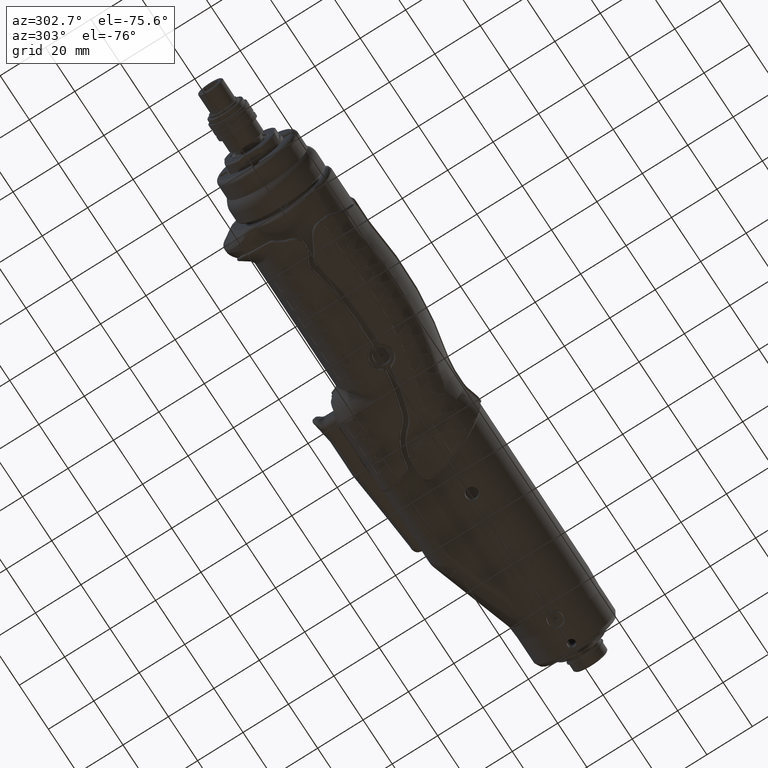
[diagram: clean part render]
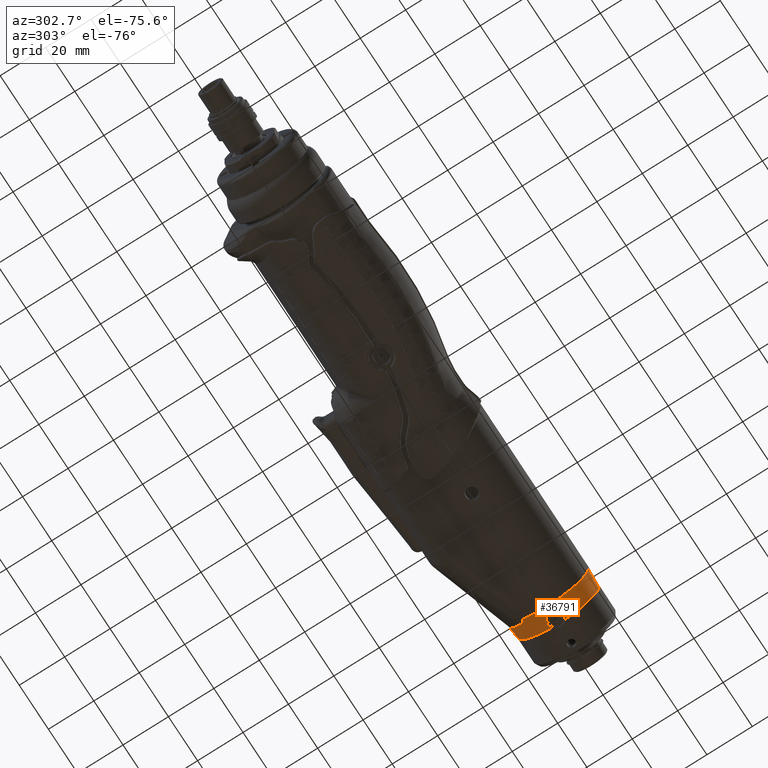
[diagram: same view with one face highlighted and labeled with its STEP entity id]
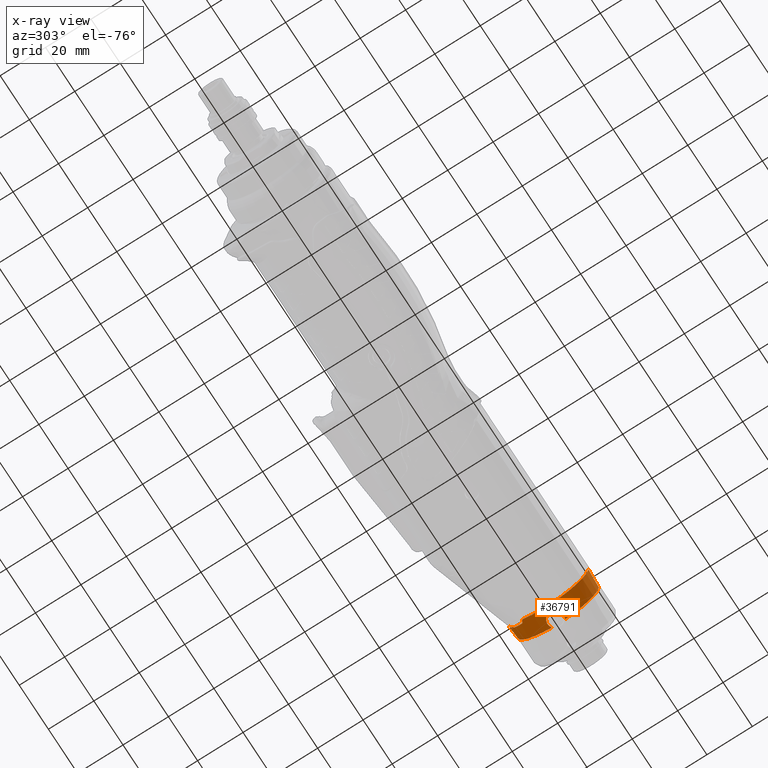
[diagram: x-ray of the same camera — body ghosted, the highlighted face saturated]
A machine part, auxiliary view. The second image highlights one B-rep face of the part: STEP entity #36791.
The next image is the same camera in x-ray: the body ghosted, the highlighted face saturated — about 0% of this face is hidden behind the body in this view.
In plain terms, the highlighted conical surface has half-angle 3.576 deg.
Its self-contained STEP definition (entity closure, byte-faithful):
#254=CONICAL_SURFACE('',#39764,18.25,0.0624188099959568);
#359=(
BOUNDED_CURVE()
B_SPLINE_CURVE(2,(#58639,#58640,#58641),.UNSPECIFIED.,.F.,.F.)
B_SPLINE_CURVE_WITH_KNOTS((3,3),(0.00104003275923503,0.00156713286452728),
 .UNSPECIFIED.)
CURVE()
GEOMETRIC_REPRESENTATION_ITEM()
RATIONAL_B_SPLINE_CURVE((1.00000001995545,1.00000001503454,1.))
REPRESENTATION_ITEM('')
);
#360=(
BOUNDED_CURVE()
B_SPLINE_CURVE(2,(#62619,#62620,#62621),.UNSPECIFIED.,.F.,.F.)
B_SPLINE_CURVE_WITH_KNOTS((3,3),(0.,0.000527100104807174),.UNSPECIFIED.)
CURVE()
GEOMETRIC_REPRESENTATION_ITEM()
RATIONAL_B_SPLINE_CURVE((1.,1.00000001582573,1.00000002100559))
REPRESENTATION_ITEM('')
);
#1807=LINE('',#58634,#3721);
#1893=LINE('',#62622,#3807);
#3721=VECTOR('',#44855,10.);
#3807=VECTOR('',#45427,10.);
#7047=FACE_OUTER_BOUND('',#9395,.T.);
#9395=EDGE_LOOP('',(#27534,#27535,#27536,#27537,#27538,#27539,#27540,#27541,
#27542,#27543,#27544,#27545));
#11535=CIRCLE('',#39547,18.5);
#11638=CIRCLE('',#39765,18.);
#11639=CIRCLE('',#39766,18.5);
#11640=CIRCLE('',#39767,18.);
#12570=B_SPLINE_CURVE_WITH_KNOTS('',3,(#62450,#62451,#62452,#62453,#62454,
#62455,#62456,#62457,#62458,#62459,#62460,#62461,#62462,#62463,#62464,#62465,
#62466,#62467,#62468,#62469,#62470,#62471,#62472,#62473,#62474,#62475,#62476,
#62477,#62478,#62479,#62480,#62481,#62482,#62483,#62484,#62485,#62486,#62487,
#62488,#62489,#62490,#62491,#62492,#62493,#62494,#62495,#62496,#62497,#62498,
#62499,#62500,#62501,#62502,#62503,#62504,#62505,#62506,#62507,#62508,#62509,
#62510,#62511,#62512,#62513,#62514,#62515,#62516,#62517,#62518,#62519,#62520,
#62521,#62522,#62523,#62524,#62525,#62526,#62527,#62528,#62529,#62530,#62531,
#62532,#62533,#62534,#62535,#62536,#62537,#62538,#62539,#62540,#62541,#62542,
#62543,#62544,#62545,#62546,#62547,#62548,#62549,#62550,#62551,#62552,#62553,
#62554,#62555,#62556,#62557,#62558,#62559,#62560,#62561,#62562,#62563,#62564,
#62565,#62566,#62567,#62568,#62569,#62570,#62571,#62572,#62573,#62574,#62575,
#62576,#62577,#62578,#62579,#62580,#62581,#62582),.UNSPECIFIED.,.F.,.F.,
(4,3,3,3,3,3,3,3,3,3,3,3,3,3,3,3,3,3,3,3,3,3,3,3,3,3,3,3,3,3,3,3,3,3,3,
3,3,3,3,3,3,3,3,3,4),(-2.93714259881077,-2.90834447914404,-2.85116685314039,
-2.82929825116945,-2.80883245135215,-2.7972943206201,-2.78511389557666,
-2.72676447893507,-2.72064538995328,-2.66274062422019,-2.60784954568541,
-2.55235974516229,-2.5355286399308,-2.50336042135629,-2.45486092870458,
-2.41849206889797,-2.39472766404724,-2.32172749538986,-2.31494317466276,
-2.28610877600507,-2.24043959387444,-2.20354592014743,-2.17749058824733,
-2.17747802537893,-2.1542651754434,-2.11926637875517,-2.0722598161924,-2.06884798659854,
-2.04205000957987,-1.9701898313079,-1.96023912150158,-1.91709340732681,
-1.86962412091606,-1.85161753117794,-1.80510090314765,-1.78038515552278,
-1.70426976628469,-1.64133579745047,-1.63434482723175,-1.58690743269953,
-1.53873177343309,-1.52567598883331,-1.51254143930877,-1.46268569694074,
-1.41784220686106),.UNSPECIFIED.);
#12575=B_SPLINE_CURVE_WITH_KNOTS('',3,(#62626,#62627,#62628,#62629,#62630,
#62631,#62632,#62633,#62634,#62635),.UNSPECIFIED.,.F.,.F.,(4,2,2,2,4),(-0.000466845749207443,
0.,0.0249297418680463,0.0471638812398344,0.0933230027516463),
 .UNSPECIFIED.);
#12576=B_SPLINE_CURVE_WITH_KNOTS('',3,(#62637,#62638,#62639,#62640,#62641,
#62642,#62643,#62644,#62645,#62646),.UNSPECIFIED.,.F.,.F.,(4,2,2,2,4),(0.897314105273959,
0.897882514580168,1.01265430119833,1.08593987366293,1.16024933147187),
 .UNSPECIFIED.);
#12577=B_SPLINE_CURVE_WITH_KNOTS('',3,(#62647,#62648,#62649,#62650,#62651,
#62652,#62653,#62654,#62655,#62656,#62657,#62658),.UNSPECIFIED.,.F.,.F.,
(4,2,2,2,2,4),(3.9053561456094,4.06856163044681,4.4338113435107,4.7990610565746,
5.16431076963849,5.20765508833823),.UNSPECIFIED.);
#15396=VERTEX_POINT('',#58631);
#15397=VERTEX_POINT('',#58633);
#15398=VERTEX_POINT('',#58637);
#15473=VERTEX_POINT('',#59232);
#15474=VERTEX_POINT('',#59239);
#15618=VERTEX_POINT('',#62448);
#15619=VERTEX_POINT('',#62449);
#15621=VERTEX_POINT('',#62616);
#15622=VERTEX_POINT('',#62618);
#15623=VERTEX_POINT('',#62623);
#15624=VERTEX_POINT('',#62625);
#15625=VERTEX_POINT('',#62636);
#19594=EDGE_CURVE('',#15397,#15396,#1807,.T.);
#19597=EDGE_CURVE('',#15396,#15398,#359,.T.);
#19691=EDGE_CURVE('',#15473,#15474,#11535,.T.);
#19985=EDGE_CURVE('',#15618,#15619,#12570,.T.);
#19990=EDGE_CURVE('',#15621,#15618,#11638,.T.);
#19991=EDGE_CURVE('',#15621,#15622,#360,.T.);
#19992=EDGE_CURVE('',#15622,#15474,#1893,.T.);
#19993=EDGE_CURVE('',#15623,#15473,#11639,.T.);
#19994=EDGE_CURVE('',#15623,#15624,#12575,.T.);
#19995=EDGE_CURVE('',#15625,#15624,#12576,.F.);
#19996=EDGE_CURVE('',#15397,#15625,#12577,.T.);
#19997=EDGE_CURVE('',#15619,#15398,#11640,.T.);
#27534=ORIENTED_EDGE('',*,*,#19985,.F.);
#27535=ORIENTED_EDGE('',*,*,#19990,.F.);
#27536=ORIENTED_EDGE('',*,*,#19991,.T.);
#27537=ORIENTED_EDGE('',*,*,#19992,.T.);
#27538=ORIENTED_EDGE('',*,*,#19691,.F.);
#27539=ORIENTED_EDGE('',*,*,#19993,.F.);
#27540=ORIENTED_EDGE('',*,*,#19994,.T.);
#27541=ORIENTED_EDGE('',*,*,#19995,.F.);
#27542=ORIENTED_EDGE('',*,*,#19996,.F.);
#27543=ORIENTED_EDGE('',*,*,#19594,.T.);
#27544=ORIENTED_EDGE('',*,*,#19597,.T.);
#27545=ORIENTED_EDGE('',*,*,#19997,.F.);
#36791=ADVANCED_FACE('',(#7047),#254,.T.);
#39547=AXIS2_PLACEMENT_3D('',#59240,#44936,#44937);
#39764=AXIS2_PLACEMENT_3D('',#62615,#45423,#45424);
#39765=AXIS2_PLACEMENT_3D('',#62617,#45425,#45426);
#39766=AXIS2_PLACEMENT_3D('',#62624,#45428,#45429);
#39767=AXIS2_PLACEMENT_3D('',#62659,#45430,#45431);
#44855=DIRECTION('',(0.998052578482889,-0.0619880258423978,0.00696672346370529));
#44936=DIRECTION('center_axis',(-1.,0.,0.));
#44937=DIRECTION('ref_axis',(0.,-1.,0.));
#45423=DIRECTION('center_axis',(-1.,0.,0.));
#45424=DIRECTION('ref_axis',(0.,-1.,0.));
#45425=DIRECTION('center_axis',(1.,0.,0.));
#45426=DIRECTION('ref_axis',(0.,0.,-1.));
#45427=DIRECTION('',(-0.998052578482889,-0.0619880258423975,-0.00696672346370832));
#45428=DIRECTION('center_axis',(-1.,0.,0.));
#45429=DIRECTION('ref_axis',(0.,-1.,0.));
#45430=DIRECTION('center_axis',(1.,0.,0.));
#45431=DIRECTION('ref_axis',(0.,0.,-1.));
#58631=CARTESIAN_POINT('',(189.296491037772,17.8876036605099,-2.01035581368608));
#58633=CARTESIAN_POINT('',(183.919032194364,18.2215921345859,-2.04789218171267));
#58634=CARTESIAN_POINT('',(185.3,18.1358216352633,-2.03825258834982));
#58637=CARTESIAN_POINT('',(189.3,17.8878225448907,-2.00644077971384));
#58639=CARTESIAN_POINT('Ctrl Pts',(189.296491037772,17.8876036605099,-2.01035581368608));
#58640=CARTESIAN_POINT('Ctrl Pts',(189.298248935628,17.8877131033675,-2.00839828476755));
#58641=CARTESIAN_POINT('Ctrl Pts',(189.3,17.8878225448907,-2.00644077971387));
#59232=CARTESIAN_POINT('',(181.299999999252,9.95077601828565,-15.5958987119663));
#59239=CARTESIAN_POINT('',(181.3,-18.3842575480751,-2.06617385668418));
#59240=CARTESIAN_POINT('Origin',(181.3,0.,0.));
#62448=CARTESIAN_POINT('',(189.3,-2.83682780919607,-17.7750501541057));
#62449=CARTESIAN_POINT('',(189.299999995053,2.83682781623016,-17.7750501536093));
#62450=CARTESIAN_POINT('Ctrl Pts',(189.299999939743,-2.83682772773115,-17.7750502149843));
#62451=CARTESIAN_POINT('Ctrl Pts',(189.221535403186,-2.89260464088107,-17.7711156397036));
#62452=CARTESIAN_POINT('Ctrl Pts',(189.140746059252,-2.94505816471117,-17.7676172910778));
#62453=CARTESIAN_POINT('Ctrl Pts',(189.057937901734,-2.9940458070164,-17.7646321096991));
#62454=CARTESIAN_POINT('Ctrl Pts',(188.893525297182,-3.09130900068824,-17.7587051399387));
#62455=CARTESIAN_POINT('Ctrl Pts',(188.721145749806,-3.17491191249561,-17.7548012523494));
#62456=CARTESIAN_POINT('Ctrl Pts',(188.543165184488,-3.24380801501641,-17.7535153672733));
#62457=CARTESIAN_POINT('Ctrl Pts',(188.475093345667,-3.27015855715469,-17.7530235576115));
#62458=CARTESIAN_POINT('Ctrl Pts',(188.406202391925,-3.29435825230119,-17.7529146300155));
#62459=CARTESIAN_POINT('Ctrl Pts',(188.336625253032,-3.3163504654814,-17.7532215005654));
#62460=CARTESIAN_POINT('Ctrl Pts',(188.271511269141,-3.33693194723702,-17.7535086863332));
#62461=CARTESIAN_POINT('Ctrl Pts',(188.20579632264,-3.35558008104492,-17.7541600335663));
#62462=CARTESIAN_POINT('Ctrl Pts',(188.139610655165,-3.37227284570755,-17.7551860129883));
#62463=CARTESIAN_POINT('Ctrl Pts',(188.102296751446,-3.38168382903956,-17.7557644357621));
#62464=CARTESIAN_POINT('Ctrl Pts',(188.064833231803,-3.39047332624578,-17.7564619298131));
#62465=CARTESIAN_POINT('Ctrl Pts',(188.027243422109,-3.39863751282223,-17.7572803459936));
#62466=CARTESIAN_POINT('Ctrl Pts',(187.987561096608,-3.40725617601339,-17.7581443210319));
#62467=CARTESIAN_POINT('Ctrl Pts',(187.947729203211,-3.41517992182432,-17.7591432412644));
#62468=CARTESIAN_POINT('Ctrl Pts',(187.907772216112,-3.4224038275139,-17.7602795418716));
#62469=CARTESIAN_POINT('Ctrl Pts',(187.716361253061,-3.4570094083009,-17.7657229050812));
#62470=CARTESIAN_POINT('Ctrl Pts',(187.522098313483,-3.47554668042974,-17.7743191824371));
#62471=CARTESIAN_POINT('Ctrl Pts',(187.327983170594,-3.4774388044138,-17.7863244400179));
#62472=CARTESIAN_POINT('Ctrl Pts',(187.30762636327,-3.47763723099095,-17.7875834284297));
#62473=CARTESIAN_POINT('Ctrl Pts',(187.287271193964,-3.47765264445912,-17.7888798991635));
#62474=CARTESIAN_POINT('Ctrl Pts',(187.266921129252,-3.47748441129881,-17.7902141413973));
#62475=CARTESIAN_POINT('Ctrl Pts',(187.07434904323,-3.47589242566743,-17.8028400378682));
#62476=CARTESIAN_POINT('Ctrl Pts',(186.882234549998,-3.45785124208396,-17.8188490332205));
#62477=CARTESIAN_POINT('Ctrl Pts',(186.693066247619,-3.42421825583325,-17.837473393011));
#62478=CARTESIAN_POINT('Ctrl Pts',(186.513743319519,-3.3923357179061,-17.8551284371681));
#62479=CARTESIAN_POINT('Ctrl Pts',(186.337108815031,-3.34645669619586,-17.8751284900118));
#62480=CARTESIAN_POINT('Ctrl Pts',(186.165162000375,-3.28724727822998,-17.8968396304366));
#62481=CARTESIAN_POINT('Ctrl Pts',(185.991339683515,-3.22739203618121,-17.9187875841562));
#62482=CARTESIAN_POINT('Ctrl Pts',(185.822307320994,-3.15391277825702,-17.9424847724793));
#62483=CARTESIAN_POINT('Ctrl Pts',(185.660175838075,-3.06747214224956,-17.9672728666161));
#62484=CARTESIAN_POINT('Ctrl Pts',(185.610998295092,-3.04125306365849,-17.9747915640519));
#62485=CARTESIAN_POINT('Ctrl Pts',(185.562455991849,-3.01384139996249,-17.9824105698353));
#62486=CARTESIAN_POINT('Ctrl Pts',(185.514608744237,-2.98525543036352,-17.9901113309557));
#62487=CARTESIAN_POINT('Ctrl Pts',(185.423161349774,-2.9306208888063,-18.0048293048204));
#62488=CARTESIAN_POINT('Ctrl Pts',(185.334199685826,-2.87182360644171,-18.0198289308886));
#62489=CARTESIAN_POINT('Ctrl Pts',(185.248145104311,-2.80897714816343,-18.034986532305));
#62490=CARTESIAN_POINT('Ctrl Pts',(185.118402030906,-2.71422457943184,-18.0578393979931));
#62491=CARTESIAN_POINT('Ctrl Pts',(184.995266063651,-2.61026549970676,-18.0810518867394));
#62492=CARTESIAN_POINT('Ctrl Pts',(184.879790772526,-2.49814659639919,-18.1038792184131));
#62493=CARTESIAN_POINT('Ctrl Pts',(184.793198017747,-2.41407073388767,-18.1209970062498));
#62494=CARTESIAN_POINT('Ctrl Pts',(184.710913961823,-2.3254072060523,-18.1378978729951));
#62495=CARTESIAN_POINT('Ctrl Pts',(184.633390585437,-2.23261451184943,-18.1542637778958));
#62496=CARTESIAN_POINT('Ctrl Pts',(184.582734697086,-2.17198123481098,-18.1649577064896));
#62497=CARTESIAN_POINT('Ctrl Pts',(184.534112103167,-2.10956925369024,-18.1754250626778));
#62498=CARTESIAN_POINT('Ctrl Pts',(184.487639641645,-2.0455103129804,-18.1855767148814));
#62499=CARTESIAN_POINT('Ctrl Pts',(184.344884224443,-1.84873225330645,-18.2167608462608));
#62500=CARTESIAN_POINT('Ctrl Pts',(184.22241443573,-1.6364151209623,-18.2449664383403));
#62501=CARTESIAN_POINT('Ctrl Pts',(184.123270000891,-1.41299307664726,-18.2684346248925));
#62502=CARTESIAN_POINT('Ctrl Pts',(184.11405594486,-1.39222919576841,-18.2706156569008));
#62503=CARTESIAN_POINT('Ctrl Pts',(184.105043385041,-1.37136938612322,-18.2727557661309));
#62504=CARTESIAN_POINT('Ctrl Pts',(184.096234784059,-1.35041719909128,-18.2748535368086));
#62505=CARTESIAN_POINT('Ctrl Pts',(184.058796885332,-1.26136720603656,-18.2837693823955));
#62506=CARTESIAN_POINT('Ctrl Pts',(184.02499327083,-1.17069023911879,-18.29192084119));
#62507=CARTESIAN_POINT('Ctrl Pts',(183.995027156139,-1.07865467989211,-18.2992003312381));
#62508=CARTESIAN_POINT('Ctrl Pts',(183.947565512642,-0.932884734532193,
-18.310729906062));
#62509=CARTESIAN_POINT('Ctrl Pts',(183.909731092325,-0.783704844482289,
-18.3200720095821));
#62510=CARTESIAN_POINT('Ctrl Pts',(183.881838065249,-0.632570159642286,
-18.327026364231));
#62511=CARTESIAN_POINT('Ctrl Pts',(183.859304790245,-0.510476583817502,
-18.332644412977));
#62512=CARTESIAN_POINT('Ctrl Pts',(183.843288332583,-0.387081207612999,
-18.336703192323));
#62513=CARTESIAN_POINT('Ctrl Pts',(183.833906884888,-0.263138898911879,
-18.3390991686677));
#62514=CARTESIAN_POINT('Ctrl Pts',(183.82728144728,-0.175607415504523,-18.3407912733724));
#62515=CARTESIAN_POINT('Ctrl Pts',(183.823963255923,-0.0878037855691739,
-18.3416541237988));
#62516=CARTESIAN_POINT('Ctrl Pts',(183.823963184247,-5.77529440661601E-9,
-18.3416532785451));
#62517=CARTESIAN_POINT('Ctrl Pts',(183.823963184213,4.23297947992371E-5,
-18.3416532781375));
#62518=CARTESIAN_POINT('Ctrl Pts',(183.823963184949,8.46653646868113E-5,
-18.3416532775292));
#62519=CARTESIAN_POINT('Ctrl Pts',(183.823963186457,0.000127000934335645,
-18.3416532767201));
#62520=CARTESIAN_POINT('Ctrl Pts',(183.82396597279,0.0783519090079863,-18.3416517817003));
#62521=CARTESIAN_POINT('Ctrl Pts',(183.826602036225,0.15657661992291,-18.3409647752287));
#62522=CARTESIAN_POINT('Ctrl Pts',(183.8318646849,0.23460866705191,-18.339616557525));
#62523=CARTESIAN_POINT('Ctrl Pts',(183.839799357786,0.352260216095577,-18.3375838042254));
#62524=CARTESIAN_POINT('Ctrl Pts',(183.853708674162,0.469472753657046,-18.3340477616424));
#62525=CARTESIAN_POINT('Ctrl Pts',(183.873500458053,0.585599589611141,-18.3290963690448));
#62526=CARTESIAN_POINT('Ctrl Pts',(183.90008262132,0.741568477002296,-18.3224461990979));
#62527=CARTESIAN_POINT('Ctrl Pts',(183.937245130993,0.895614315510895,-18.3132438425189));
#62528=CARTESIAN_POINT('Ctrl Pts',(183.984627204514,1.04616157194654,-18.3017089550579));
#62529=CARTESIAN_POINT('Ctrl Pts',(183.988066289438,1.05708859057498,-18.3008717300354));
#62530=CARTESIAN_POINT('Ctrl Pts',(183.991559211764,1.06799720094446,-18.3000222155927));
#62531=CARTESIAN_POINT('Ctrl Pts',(183.995105833559,1.0788868113515,-18.2991604948841));
#62532=CARTESIAN_POINT('Ctrl Pts',(184.022962526498,1.16441849498391,-18.2923921698226));
#62533=CARTESIAN_POINT('Ctrl Pts',(184.054131980653,1.24877757153996,-18.2848708939691));
#62534=CARTESIAN_POINT('Ctrl Pts',(184.088449635595,1.33175114618658,-18.2766839498448));
#62535=CARTESIAN_POINT('Ctrl Pts',(184.18047422388,1.5542491303372,-18.2547302305821));
#62536=CARTESIAN_POINT('Ctrl Pts',(184.295465398587,1.76651515022596,-18.2279868152572));
#62537=CARTESIAN_POINT('Ctrl Pts',(184.430505693554,1.96431047550546,-18.1981509494265));
#62538=CARTESIAN_POINT('Ctrl Pts',(184.449205157147,1.99169982980756,-18.194019481208));
#62539=CARTESIAN_POINT('Ctrl Pts',(184.468289136772,2.01881172607777,-18.1898286969252));
#62540=CARTESIAN_POINT('Ctrl Pts',(184.487749958655,2.0456349185301,-18.1855830857984));
#62541=CARTESIAN_POINT('Ctrl Pts',(184.5721309802,2.16193876190703,-18.1671743563972));
#62542=CARTESIAN_POINT('Ctrl Pts',(184.663596371995,2.27281495190589,-18.1477349534479));
#62543=CARTESIAN_POINT('Ctrl Pts',(184.761437249414,2.37749637720704,-18.1277864054354));
#62544=CARTESIAN_POINT('Ctrl Pts',(184.869082625594,2.49266778309399,-18.1058388410666));
#62545=CARTESIAN_POINT('Ctrl Pts',(184.984339193482,2.60049749033157,-18.0832614052844));
#62546=CARTESIAN_POINT('Ctrl Pts',(185.10633312409,2.69987719738402,-18.0607489632471));
#62547=CARTESIAN_POINT('Ctrl Pts',(185.152609249667,2.73757503841968,-18.052209287629));
#62548=CARTESIAN_POINT('Ctrl Pts',(185.199854427201,2.77405666184726,-18.0436791015508));
#62549=CARTESIAN_POINT('Ctrl Pts',(185.248019371623,2.80926054028581,-18.0351968494242));
#62550=CARTESIAN_POINT('Ctrl Pts',(185.372444420251,2.90020311977282,-18.0132845510506));
#62551=CARTESIAN_POINT('Ctrl Pts',(185.503011049017,2.98261941339305,-17.9916913407313));
#62552=CARTESIAN_POINT('Ctrl Pts',(185.638476937073,3.05596808405064,-17.9708335846154));
#62553=CARTESIAN_POINT('Ctrl Pts',(185.710454224394,3.09494053990906,-17.9597512027229));
#62554=CARTESIAN_POINT('Ctrl Pts',(185.783813813264,3.13135287044277,-17.9488766563303));
#62555=CARTESIAN_POINT('Ctrl Pts',(185.858363435595,3.16512335650203,-17.9382734362975));
#62556=CARTESIAN_POINT('Ctrl Pts',(186.087948783663,3.26912400136106,-17.9056194283254));
#62557=CARTESIAN_POINT('Ctrl Pts',(186.328899868734,3.34846066726488,-17.8754647209257));
#62558=CARTESIAN_POINT('Ctrl Pts',(186.575791742184,3.40113492728509,-17.849564943686));
#62559=CARTESIAN_POINT('Ctrl Pts',(186.779927668239,3.44468722691412,-17.8281504072836));
#62560=CARTESIAN_POINT('Ctrl Pts',(186.988124743608,3.47001110120867,-17.8096450069695));
#62561=CARTESIAN_POINT('Ctrl Pts',(187.197294584512,3.47596193859905,-17.795046544253));
#62562=CARTESIAN_POINT('Ctrl Pts',(187.220530051073,3.47662298267021,-17.7934248855529));
#62563=CARTESIAN_POINT('Ctrl Pts',(187.243774182956,3.47704711431928,-17.7918512331057));
#62564=CARTESIAN_POINT('Ctrl Pts',(187.267023066065,3.47723282898878,-17.7903269196394));
#62565=CARTESIAN_POINT('Ctrl Pts',(187.424778914825,3.47849300029149,-17.7799836543945));
#62566=CARTESIAN_POINT('Ctrl Pts',(187.582755129253,3.46877957303024,-17.7719110796903));
#62567=CARTESIAN_POINT('Ctrl Pts',(187.739463875206,3.44836187161503,-17.7659655958699));
#62568=CARTESIAN_POINT('Ctrl Pts',(187.898611468019,3.42762641099197,-17.7599275829156));
#62569=CARTESIAN_POINT('Ctrl Pts',(188.056452958425,3.39585002149607,-17.7560837155379));
#62570=CARTESIAN_POINT('Ctrl Pts',(188.211399044478,3.35327326406675,-17.7542937819827));
#62571=CARTESIAN_POINT('Ctrl Pts',(188.253390015746,3.34173480289324,-17.7538087032665));
#62572=CARTESIAN_POINT('Ctrl Pts',(188.295168116086,3.32940293956731,-17.7534745124939));
#62573=CARTESIAN_POINT('Ctrl Pts',(188.336701182546,3.31628207727177,-17.7532884939279));
#62574=CARTESIAN_POINT('Ctrl Pts',(188.378484816011,3.30308205744083,-17.7531013531208));
#62575=CARTESIAN_POINT('Ctrl Pts',(188.420020450381,3.28908348792606,-17.7530641788566));
#62576=CARTESIAN_POINT('Ctrl Pts',(188.461281001076,3.27429653381965,-17.7531702386211));
#62577=CARTESIAN_POINT('Ctrl Pts',(188.617896603429,3.21816864203621,-17.7535728172011));
#62578=CARTESIAN_POINT('Ctrl Pts',(188.770558668835,3.15073652466977,-17.7560282396047));
#62579=CARTESIAN_POINT('Ctrl Pts',(188.917667773725,3.07268475757265,-17.760153029079));
#62580=CARTESIAN_POINT('Ctrl Pts',(189.049987249324,3.00247993306752,-17.7638631324109));
#62581=CARTESIAN_POINT('Ctrl Pts',(189.177813730974,2.92368433735592,-17.7689235317194));
#62582=CARTESIAN_POINT('Ctrl Pts',(189.299999931937,2.8368277312582,-17.7750502221414));
#62615=CARTESIAN_POINT('Origin',(185.3,0.,0.));
#62616=CARTESIAN_POINT('',(189.3,-17.8878225448907,-2.00644077971389));
#62617=CARTESIAN_POINT('Origin',(189.3,0.,0.));
#62618=CARTESIAN_POINT('',(189.296491037772,-17.8876036605099,-2.01035581368612));
#62619=CARTESIAN_POINT('Ctrl Pts',(189.3,-17.8878225448907,-2.00644077971388));
#62620=CARTESIAN_POINT('Ctrl Pts',(189.298248935626,-17.8877131033673,-2.00839828477005));
#62621=CARTESIAN_POINT('Ctrl Pts',(189.296491037772,-17.8876036605099,-2.01035581368612));
#62622=CARTESIAN_POINT('',(185.3,-18.1358216352632,-2.03825258835071));
#62623=CARTESIAN_POINT('',(181.3,10.4257254034709,-15.282481794899));
#62624=CARTESIAN_POINT('Origin',(181.3,0.,0.));
#62625=CARTESIAN_POINT('',(182.021516151073,11.1655795753024,-14.6939906147228));
#62626=CARTESIAN_POINT('Ctrl Pts',(181.3,10.4257254034709,-15.282481794899));
#62627=CARTESIAN_POINT('Ctrl Pts',(181.3,10.4270109100769,-15.2816048209194));
#62628=CARTESIAN_POINT('Ctrl Pts',(181.300006202646,10.4282960920264,-15.2807273614467));
#62629=CARTESIAN_POINT('Ctrl Pts',(181.300678455164,10.4981902026862,-15.2329688036275));
#62630=CARTESIAN_POINT('Ctrl Pts',(181.318963338668,10.5736282200884,-15.1793951151354));
#62631=CARTESIAN_POINT('Ctrl Pts',(181.396278032063,10.7216034803225,-15.0692458204043));
#62632=CARTESIAN_POINT('Ctrl Pts',(181.446645835981,10.7859508512763,-15.0193125395394));
#62633=CARTESIAN_POINT('Ctrl Pts',(181.626210628847,10.9644529422118,-14.8761760480633));
#62634=CARTESIAN_POINT('Ctrl Pts',(181.799349115831,11.0749964322991,-14.7802617849283));
#62635=CARTESIAN_POINT('Ctrl Pts',(182.021516151073,11.1655795753024,-14.6939906147228));
#62636=CARTESIAN_POINT('',(182.91875585956,12.1528862014161,-13.8139139963032));
#62637=CARTESIAN_POINT('Ctrl Pts',(182.021516151073,11.1655795753024,-14.6939906147228));
#62638=CARTESIAN_POINT('Ctrl Pts',(182.022567763353,11.1660083443385,-14.6935822561115));
#62639=CARTESIAN_POINT('Ctrl Pts',(182.023618840985,11.166437733652,-14.6931734327799));
#62640=CARTESIAN_POINT('Ctrl Pts',(182.236791888578,11.2536943822327,-14.6101215753219));
#62641=CARTESIAN_POINT('Ctrl Pts',(182.426016857328,11.365546556129,-14.5090370691226));
#62642=CARTESIAN_POINT('Ctrl Pts',(182.672184891409,11.6012357114716,-14.3007166953841));
#62643=CARTESIAN_POINT('Ctrl Pts',(182.747975772492,11.7020024412694,-14.2124543020049));
#62644=CARTESIAN_POINT('Ctrl Pts',(182.862542606547,11.9211023800592,-14.0198087740899));
#62645=CARTESIAN_POINT('Ctrl Pts',(182.898974492719,12.0361851689063,-13.9182292162967));
#62646=CARTESIAN_POINT('Ctrl Pts',(182.9187558592,12.1528861989111,-13.813913997644));
#62647=CARTESIAN_POINT('Ctrl Pts',(183.919032194363,18.2215921345804,-2.04789218171236));
#62648=CARTESIAN_POINT('Ctrl Pts',(183.908996734186,18.1596787088147,-2.60439707696107));
#62649=CARTESIAN_POINT('Ctrl Pts',(183.894764618926,18.0718888055319,-3.16316883634765));
#62650=CARTESIAN_POINT('Ctrl Pts',(183.834813544759,17.7023488936184,-4.9656234853416));
#62651=CARTESIAN_POINT('Ctrl Pts',(183.771720551616,17.3136302826364,-6.20069897832863));
#62652=CARTESIAN_POINT('Ctrl Pts',(183.604788299561,16.2892741002512,-8.55879236911774));
#62653=CARTESIAN_POINT('Ctrl Pts',(183.500825393243,15.652737208523,-9.68388415163516));
#62654=CARTESIAN_POINT('Ctrl Pts',(183.259322703527,14.1861254547642,-11.7513484066357));
#62655=CARTESIAN_POINT('Ctrl Pts',(183.121841489052,13.3559440331426,-12.6936521273258));
#62656=CARTESIAN_POINT('Ctrl Pts',(182.95543029486,12.369527576382,-13.617924650497));
#62657=CARTESIAN_POINT('Ctrl Pts',(182.937315779265,12.2623812527836,-13.7160399644067));
#62658=CARTESIAN_POINT('Ctrl Pts',(182.918755859549,12.1528862009708,-13.813913995803));
#62659=CARTESIAN_POINT('Origin',(189.3,0.,0.));